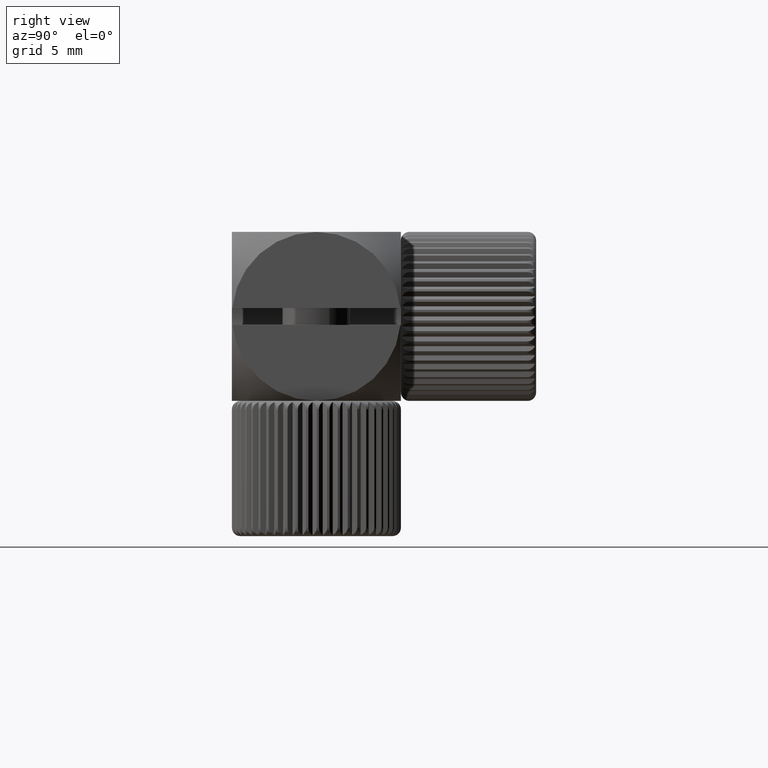
[diagram: clean part render]
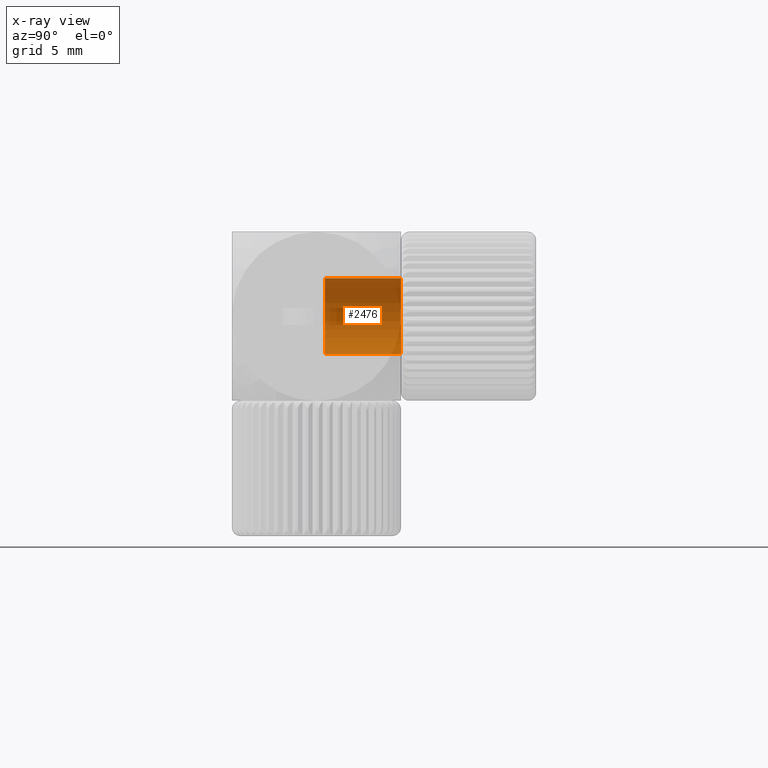
[diagram: x-ray — body ghosted, one internal face saturated and labeled with its STEP entity id]
A machine part, right view, then the same camera in x-ray: the body is ghosted and one INTERNAL B-rep face — a face not visible from any outside direction — is saturated and labeled: STEP entity #2476.
In plain terms, the highlighted cylindrical surface (partial cylindrical patch) has radius 2.25 mm, axis along (-0, 1, -0).
Its self-contained STEP definition (entity closure, byte-faithful):
#2377 = CARTESIAN_POINT ( 'NONE',  ( -12.50000000000000000, 5.000000000000000900, -2.249999999999988000 ) ) ;
#2446 = DIRECTION ( 'NONE',  ( -0.0000000000000000000, 1.000000000000000000, -0.0000000000000000000 ) ) ;
#2476 = ADVANCED_FACE ( 'NONE', ( #6596 ), #9077, .F. ) ;
#2583 = CARTESIAN_POINT ( 'NONE',  ( -12.50000000000000000, 5.000000000000000000, 0.0000000000000000000 ) ) ;
#2872 = AXIS2_PLACEMENT_3D ( 'NONE', #2583, #2446, #7107 ) ;
#2990 = DIRECTION ( 'NONE',  ( 0.0000000000000000000, 0.0000000000000000000, 1.000000000000000000 ) ) ;
#3197 = DIRECTION ( 'NONE',  ( 0.0000000000000000000, 0.0000000000000000000, 1.000000000000000000 ) ) ;
#4593 = VECTOR ( 'NONE', #18230, 1000.000000000000000 ) ;
#4644 = ORIENTED_EDGE ( 'NONE', *, *, #16353, .F. ) ;
#5180 = EDGE_CURVE ( 'NONE', #12932, #7732, #19832, .T. ) ;
#5359 = EDGE_CURVE ( 'NONE', #8492, #7732, #9504, .T. ) ;
#6535 = CARTESIAN_POINT ( 'NONE',  ( -12.50000000000000000, 5.000000000000000900, 0.0000000000000000000 ) ) ;
#6596 = FACE_OUTER_BOUND ( 'NONE', #9421, .T. ) ;
#7107 = DIRECTION ( 'NONE',  ( 0.0000000000000000000, 0.0000000000000000000, 1.000000000000000000 ) ) ;
#7431 = CIRCLE ( 'NONE', #14284, 2.249999999999993300 ) ;
#7732 = VERTEX_POINT ( 'NONE', #12475 ) ;
#7848 = DIRECTION ( 'NONE',  ( 0.0000000000000000000, 1.000000000000000000, 0.0000000000000000000 ) ) ;
#8492 = VERTEX_POINT ( 'NONE', #2377 ) ;
#8509 = CARTESIAN_POINT ( 'NONE',  ( -12.50000000000000000, 0.4999999999999995600, -2.249999999999993300 ) ) ;
#9077 = CYLINDRICAL_SURFACE ( 'NONE', #2872, 2.249999999999993300 ) ;
#9421 = EDGE_LOOP ( 'NONE', ( #4644, #12405, #18500, #17012 ) ) ;
#9504 = CIRCLE ( 'NONE', #10479, 2.249999999999988000 ) ;
#10182 = EDGE_CURVE ( 'NONE', #10854, #8492, #16646, .T. ) ;
#10446 = DIRECTION ( 'NONE',  ( -0.0000000000000000000, 1.000000000000000000, -0.0000000000000000000 ) ) ;
#10479 = AXIS2_PLACEMENT_3D ( 'NONE', #6535, #15962, #3197 ) ;
#10854 = VERTEX_POINT ( 'NONE', #8509 ) ;
#12138 = CARTESIAN_POINT ( 'NONE',  ( -12.50000000000000000, 5.000000000000000000, 2.249999999999993300 ) ) ;
#12405 = ORIENTED_EDGE ( 'NONE', *, *, #10182, .T. ) ;
#12475 = CARTESIAN_POINT ( 'NONE',  ( -12.50000000000000000, 5.000000000000000900, 2.249999999999988000 ) ) ;
#12480 = CARTESIAN_POINT ( 'NONE',  ( -12.50000000000000000, 0.4999999999999995600, 0.0000000000000000000 ) ) ;
#12932 = VERTEX_POINT ( 'NONE', #17421 ) ;
#14284 = AXIS2_PLACEMENT_3D ( 'NONE', #12480, #7848, #2990 ) ;
#15657 = VECTOR ( 'NONE', #10446, 1000.000000000000000 ) ;
#15962 = DIRECTION ( 'NONE',  ( -0.0000000000000000000, 1.000000000000000000, -0.0000000000000000000 ) ) ;
#16353 = EDGE_CURVE ( 'NONE', #10854, #12932, #7431, .T. ) ;
#16646 = LINE ( 'NONE', #16896, #15657 ) ;
#16896 = CARTESIAN_POINT ( 'NONE',  ( -12.50000000000000000, 5.000000000000000000, -2.249999999999993300 ) ) ;
#17012 = ORIENTED_EDGE ( 'NONE', *, *, #5180, .F. ) ;
#17421 = CARTESIAN_POINT ( 'NONE',  ( -12.50000000000000000, 0.4999999999999995600, 2.249999999999993300 ) ) ;
#18230 = DIRECTION ( 'NONE',  ( -0.0000000000000000000, 1.000000000000000000, -0.0000000000000000000 ) ) ;
#18500 = ORIENTED_EDGE ( 'NONE', *, *, #5359, .T. ) ;
#19832 = LINE ( 'NONE', #12138, #4593 ) ;